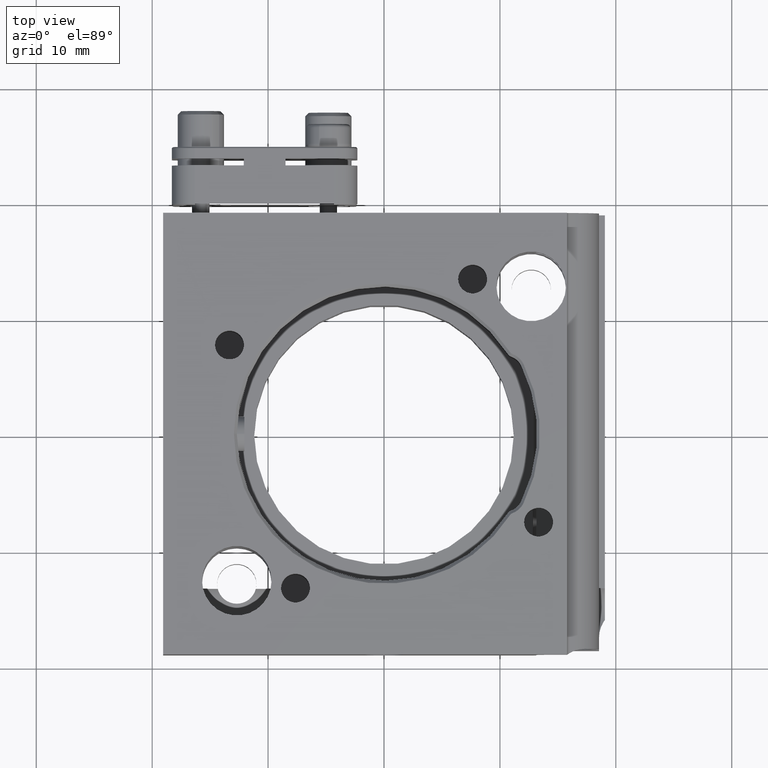
[diagram: clean part render]
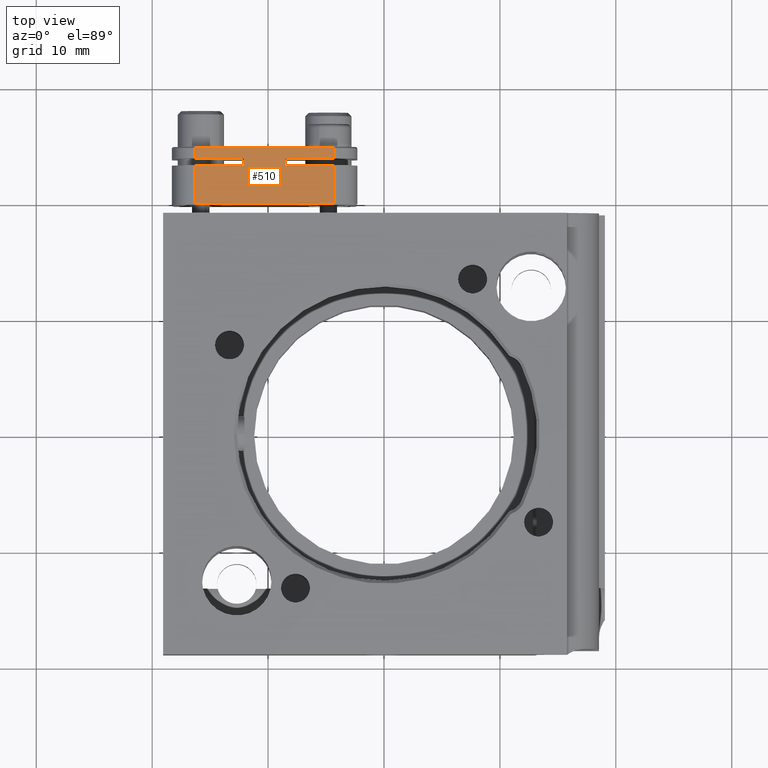
[diagram: same view with one face highlighted and labeled with its STEP entity id]
A machine part, top view. The second image highlights one B-rep face of the part: STEP entity #510.
In plain terms, the highlighted planar face has unit normal (0, 0, -1).
Its self-contained STEP definition (entity closure, byte-faithful):
#109 = LINE ( 'NONE', #4472, #6460 ) ;
#221 = CARTESIAN_POINT ( 'NONE',  ( -16.30000000000000071, 23.20000000000000284, 5.749999999999999112 ) ) ;
#235 = VERTEX_POINT ( 'NONE', #8537 ) ;
#356 = CARTESIAN_POINT ( 'NONE',  ( -12.10000000000000320, 23.20000000000000284, 5.749999999999999112 ) ) ;
#389 = ORIENTED_EDGE ( 'NONE', *, *, #8741, .T. ) ;
#423 = CARTESIAN_POINT ( 'NONE',  ( -12.10000000000000320, 23.80000000000000071, 5.749999999999999112 ) ) ;
#507 = EDGE_LOOP ( 'NONE', ( #5087, #1336, #389, #5930, #7327, #3141, #964, #6117, #4126, #8330, #1964, #10514 ) ) ;
#510 = ADVANCED_FACE ( 'NONE', ( #8848 ), #5726, .F. ) ;
#535 = DIRECTION ( 'NONE',  ( -0.0000000000000000000, 1.000000000000000000, -0.0000000000000000000 ) ) ;
#714 = DIRECTION ( 'NONE',  ( 3.614007241618351729E-16, -1.000000000000000000, 0.0000000000000000000 ) ) ;
#807 = VECTOR ( 'NONE', #9599, 1000.000000000000000 ) ;
#898 = VECTOR ( 'NONE', #6332, 1000.000000000000000 ) ;
#964 = ORIENTED_EDGE ( 'NONE', *, *, #9008, .T. ) ;
#983 = VERTEX_POINT ( 'NONE', #5860 ) ;
#1068 = LINE ( 'NONE', #5158, #9014 ) ;
#1238 = DIRECTION ( 'NONE',  ( 1.000000000000000000, 1.570888917599918769E-16, -0.0000000000000000000 ) ) ;
#1248 = VERTEX_POINT ( 'NONE', #5005 ) ;
#1336 = ORIENTED_EDGE ( 'NONE', *, *, #9481, .T. ) ;
#1396 = LINE ( 'NONE', #8662, #10054 ) ;
#1441 = LINE ( 'NONE', #8974, #5576 ) ;
#1479 = VERTEX_POINT ( 'NONE', #9552 ) ;
#1646 = AXIS2_PLACEMENT_3D ( 'NONE', #6595, #8044, #4010 ) ;
#1691 = LINE ( 'NONE', #6623, #7158 ) ;
#1741 = DIRECTION ( 'NONE',  ( 0.0000000000000000000, -1.000000000000000000, 0.0000000000000000000 ) ) ;
#1761 = DIRECTION ( 'NONE',  ( 1.000000000000000000, 1.047259278399945846E-16, 0.0000000000000000000 ) ) ;
#1886 = LINE ( 'NONE', #2534, #3016 ) ;
#1964 = ORIENTED_EDGE ( 'NONE', *, *, #4571, .F. ) ;
#2376 = CARTESIAN_POINT ( 'NONE',  ( -16.30000000000000071, 24.70000000000000284, 5.749999999999999112 ) ) ;
#2534 = CARTESIAN_POINT ( 'NONE',  ( -8.500000000000003553, 23.80000000000000071, 5.749999999999999112 ) ) ;
#3016 = VECTOR ( 'NONE', #5844, 1000.000000000000000 ) ;
#3141 = ORIENTED_EDGE ( 'NONE', *, *, #3620, .F. ) ;
#3387 = EDGE_CURVE ( 'NONE', #9566, #8750, #4015, .T. ) ;
#3446 = VERTEX_POINT ( 'NONE', #2376 ) ;
#3497 = CARTESIAN_POINT ( 'NONE',  ( -8.500000000000003553, 23.20000000000000284, 5.749999999999999112 ) ) ;
#3555 = LINE ( 'NONE', #9882, #6299 ) ;
#3620 = EDGE_CURVE ( 'NONE', #7529, #983, #1886, .T. ) ;
#3874 = VECTOR ( 'NONE', #5885, 1000.000000000000000 ) ;
#4010 = DIRECTION ( 'NONE',  ( -1.000000000000000000, 0.0000000000000000000, -0.0000000000000000000 ) ) ;
#4011 = VECTOR ( 'NONE', #4832, 1000.000000000000000 ) ;
#4015 = LINE ( 'NONE', #9798, #898 ) ;
#4126 = ORIENTED_EDGE ( 'NONE', *, *, #9590, .T. ) ;
#4326 = LINE ( 'NONE', #4385, #3874 ) ;
#4385 = CARTESIAN_POINT ( 'NONE',  ( -16.30000000000000071, 24.70000000000000284, 5.749999999999999112 ) ) ;
#4472 = CARTESIAN_POINT ( 'NONE',  ( -4.299999999999999822, 24.80000000000000426, 5.749999999999999112 ) ) ;
#4571 = EDGE_CURVE ( 'NONE', #4915, #8991, #8745, .T. ) ;
#4609 = CARTESIAN_POINT ( 'NONE',  ( -12.10000000000000320, 23.20000000000000284, 5.749999999999999112 ) ) ;
#4832 = DIRECTION ( 'NONE',  ( -0.0000000000000000000, 1.000000000000000000, -0.0000000000000000000 ) ) ;
#4915 = VERTEX_POINT ( 'NONE', #4609 ) ;
#5005 = CARTESIAN_POINT ( 'NONE',  ( -4.299999999999999822, 23.20000000000000639, 5.749999999999999112 ) ) ;
#5087 = ORIENTED_EDGE ( 'NONE', *, *, #3387, .T. ) ;
#5115 = VERTEX_POINT ( 'NONE', #9260 ) ;
#5158 = CARTESIAN_POINT ( 'NONE',  ( -8.500000000000003553, 23.20000000000000284, 5.749999999999999112 ) ) ;
#5576 = VECTOR ( 'NONE', #714, 1000.000000000000000 ) ;
#5726 = PLANE ( 'NONE',  #1646 ) ;
#5844 = DIRECTION ( 'NONE',  ( -1.000000000000000000, 1.047259278399945846E-16, -0.0000000000000000000 ) ) ;
#5860 = CARTESIAN_POINT ( 'NONE',  ( -8.500000000000003553, 23.80000000000000071, 5.749999999999999112 ) ) ;
#5885 = DIRECTION ( 'NONE',  ( -1.000000000000000000, 0.0000000000000000000, 0.0000000000000000000 ) ) ;
#5930 = ORIENTED_EDGE ( 'NONE', *, *, #6899, .F. ) ;
#5945 = EDGE_CURVE ( 'NONE', #9566, #4915, #6517, .T. ) ;
#6117 = ORIENTED_EDGE ( 'NONE', *, *, #6910, .T. ) ;
#6299 = VECTOR ( 'NONE', #1741, 1000.000000000000000 ) ;
#6332 = DIRECTION ( 'NONE',  ( 0.0000000000000000000, -1.000000000000000000, 0.0000000000000000000 ) ) ;
#6460 = VECTOR ( 'NONE', #535, 1000.000000000000000 ) ;
#6517 = LINE ( 'NONE', #356, #10395 ) ;
#6595 = CARTESIAN_POINT ( 'NONE',  ( -18.30000000000000426, 24.80000000000000426, 5.749999999999999112 ) ) ;
#6623 = CARTESIAN_POINT ( 'NONE',  ( -12.10000000000000320, 23.80000000000000071, 5.749999999999999112 ) ) ;
#6899 = EDGE_CURVE ( 'NONE', #10596, #1248, #1068, .T. ) ;
#6910 = EDGE_CURVE ( 'NONE', #5115, #3446, #4326, .T. ) ;
#7158 = VECTOR ( 'NONE', #10085, 1000.000000000000000 ) ;
#7327 = ORIENTED_EDGE ( 'NONE', *, *, #8552, .F. ) ;
#7529 = VERTEX_POINT ( 'NONE', #8114 ) ;
#7651 = EDGE_CURVE ( 'NONE', #8991, #1479, #1691, .T. ) ;
#8044 = DIRECTION ( 'NONE',  ( 0.0000000000000000000, 0.0000000000000000000, -1.000000000000000000 ) ) ;
#8114 = CARTESIAN_POINT ( 'NONE',  ( -4.300000000000001599, 23.80000000000000071, 5.749999999999999112 ) ) ;
#8330 = ORIENTED_EDGE ( 'NONE', *, *, #7651, .F. ) ;
#8537 = CARTESIAN_POINT ( 'NONE',  ( -4.299999999999999822, 19.90000000000000213, 5.749999999999999112 ) ) ;
#8552 = EDGE_CURVE ( 'NONE', #983, #10596, #1441, .T. ) ;
#8662 = CARTESIAN_POINT ( 'NONE',  ( -18.30000000000000426, 19.90000000000000213, 5.749999999999999112 ) ) ;
#8741 = EDGE_CURVE ( 'NONE', #235, #1248, #109, .T. ) ;
#8745 = LINE ( 'NONE', #423, #807 ) ;
#8750 = VERTEX_POINT ( 'NONE', #10409 ) ;
#8848 = FACE_OUTER_BOUND ( 'NONE', #507, .T. ) ;
#8915 = CARTESIAN_POINT ( 'NONE',  ( -4.299999999999999822, 24.80000000000000426, 5.749999999999999112 ) ) ;
#8974 = CARTESIAN_POINT ( 'NONE',  ( -8.500000000000003553, 23.80000000000000071, 5.749999999999999112 ) ) ;
#8991 = VERTEX_POINT ( 'NONE', #9707 ) ;
#9008 = EDGE_CURVE ( 'NONE', #7529, #5115, #10458, .T. ) ;
#9014 = VECTOR ( 'NONE', #1761, 1000.000000000000000 ) ;
#9260 = CARTESIAN_POINT ( 'NONE',  ( -4.299999999999999822, 24.70000000000000284, 5.749999999999999112 ) ) ;
#9481 = EDGE_CURVE ( 'NONE', #8750, #235, #1396, .T. ) ;
#9552 = CARTESIAN_POINT ( 'NONE',  ( -16.30000000000000071, 23.80000000000000071, 5.749999999999999112 ) ) ;
#9566 = VERTEX_POINT ( 'NONE', #221 ) ;
#9590 = EDGE_CURVE ( 'NONE', #3446, #1479, #3555, .T. ) ;
#9599 = DIRECTION ( 'NONE',  ( -3.614007241618349264E-16, 1.000000000000000000, -0.0000000000000000000 ) ) ;
#9707 = CARTESIAN_POINT ( 'NONE',  ( -12.10000000000000320, 23.80000000000000071, 5.749999999999999112 ) ) ;
#9798 = CARTESIAN_POINT ( 'NONE',  ( -16.30000000000000071, 24.80000000000000426, 5.749999999999999112 ) ) ;
#9882 = CARTESIAN_POINT ( 'NONE',  ( -16.30000000000000071, 24.80000000000000426, 5.749999999999999112 ) ) ;
#10054 = VECTOR ( 'NONE', #10310, 1000.000000000000000 ) ;
#10085 = DIRECTION ( 'NONE',  ( -1.000000000000000000, -1.047259278399945846E-16, 0.0000000000000000000 ) ) ;
#10310 = DIRECTION ( 'NONE',  ( 1.000000000000000000, 0.0000000000000000000, 0.0000000000000000000 ) ) ;
#10395 = VECTOR ( 'NONE', #1238, 1000.000000000000000 ) ;
#10409 = CARTESIAN_POINT ( 'NONE',  ( -16.30000000000000071, 19.90000000000000213, 5.749999999999999112 ) ) ;
#10458 = LINE ( 'NONE', #8915, #4011 ) ;
#10514 = ORIENTED_EDGE ( 'NONE', *, *, #5945, .F. ) ;
#10596 = VERTEX_POINT ( 'NONE', #3497 ) ;